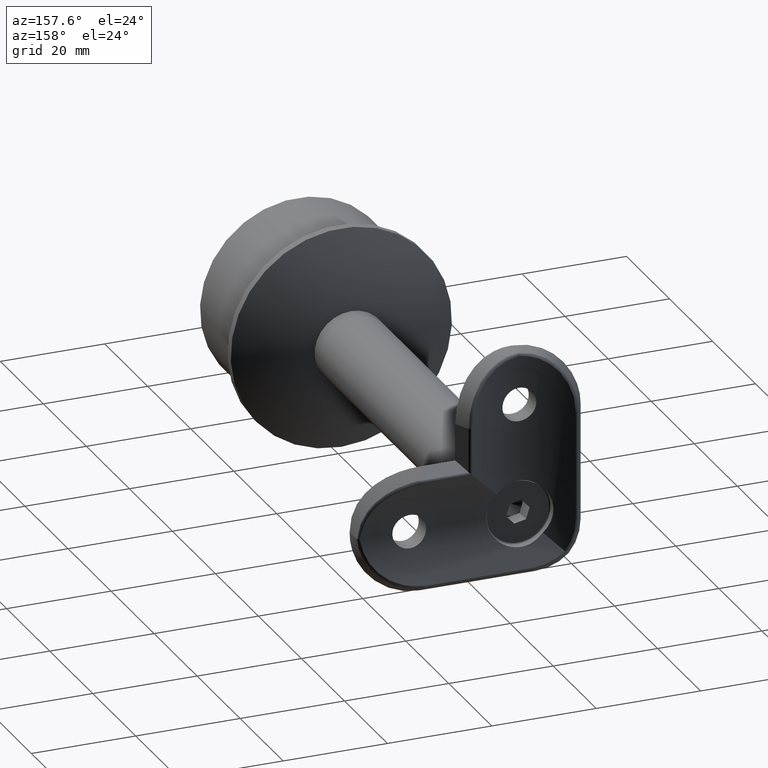
[diagram: clean part render]
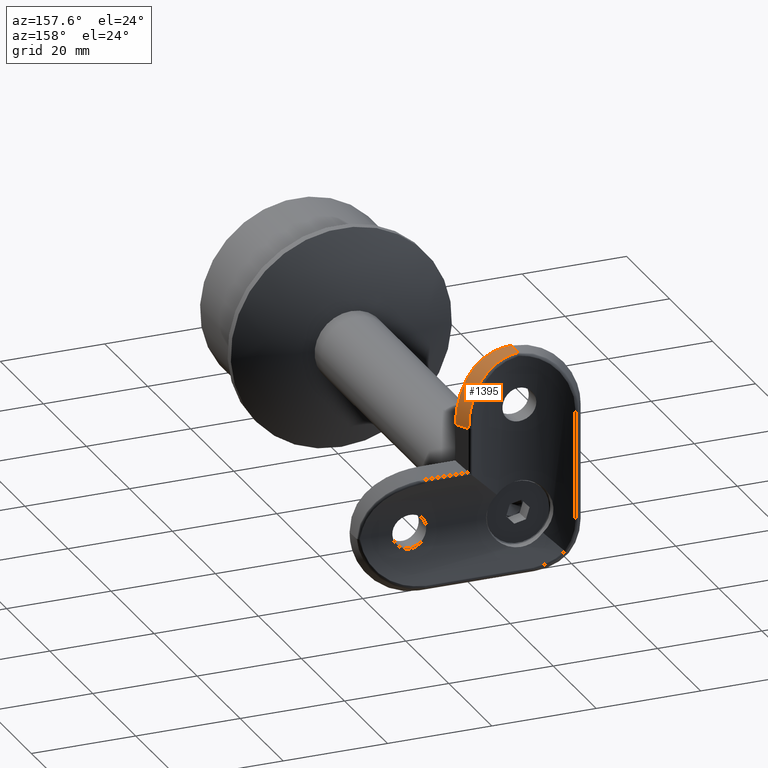
[diagram: same view with one face highlighted and labeled with its STEP entity id]
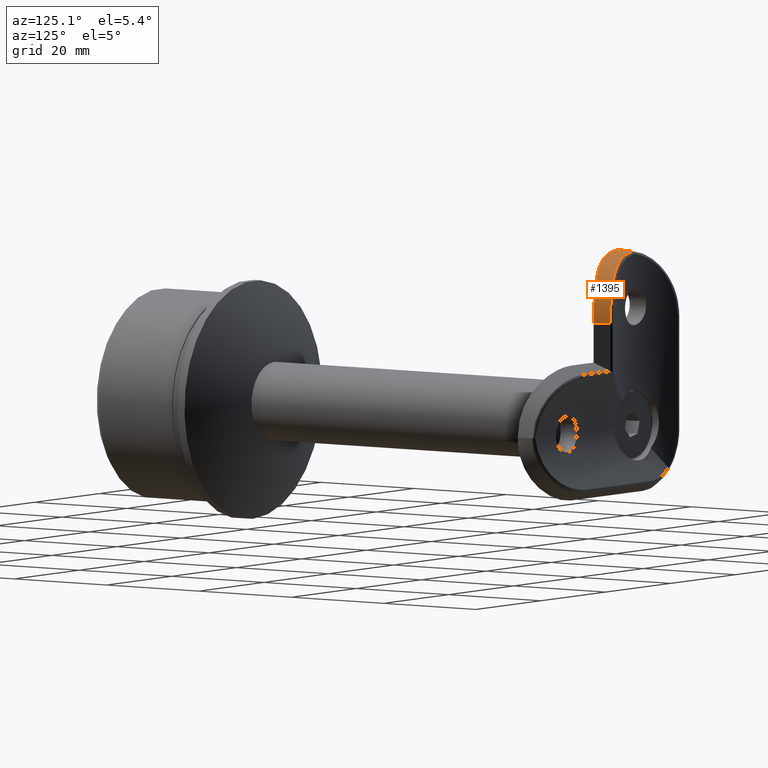
[diagram: same view with one face highlighted and labeled with its STEP entity id]
A machine part, auxiliary view. The second image highlights one B-rep face of the part: STEP entity #1395.
A second angle (auxiliary view) of the same face is appended — the face is thin or edge-on in the first view.
In plain terms, the highlighted cylindrical surface (partial cylindrical patch) has radius 12 mm, axis along (-0.4858, 0.8741, 0).
Its self-contained STEP definition (entity closure, byte-faithful):
#37 = CARTESIAN_POINT ( 'NONE',  ( 1.835189502875481660, 3.128854244805332030, -0.4086525274435564570 ) ) ;
#42 = CARTESIAN_POINT ( 'NONE',  ( 11.29067707203920712, 2.731029278538625427, -7.661343935841768982 ) ) ;
#186 = CARTESIAN_POINT ( 'NONE',  ( 10.22228452745749827, 5.573518088803390391, -9.069594813358342833 ) ) ;
#1184 = EDGE_CURVE ( 'NONE', #9452, #17342, #16684, .T. ) ;
#1291 = CARTESIAN_POINT ( 'NONE',  ( 10.53971119023871417, 5.738077944829629295, -11.99999999999999645 ) ) ;
#1395 = ADVANCED_FACE ( 'NONE', ( #17957 ), #6315, .T. ) ;
#1583 = CARTESIAN_POINT ( 'NONE',  ( 5.507687913038741279, 3.780907073739723678, -2.005107030095856224 ) ) ;
#1652 = CARTESIAN_POINT ( 'NONE',  ( 7.497033304171729640, 1.155074959277571756, -2.303094518174240157 ) ) ;
#1723 = CARTESIAN_POINT ( 'NONE',  ( 0.3717157821171476195, 3.035608346090380216, -0.1311272123468941730 ) ) ;
#1793 = CARTESIAN_POINT ( 'NONE',  ( 5.807837735107585608, 3.861754889686737524, -2.212511702124247748 ) ) ;
#2147 = EDGE_CURVE ( 'NONE', #7361, #16227, #10642, .T. ) ;
#2241 = DIRECTION ( 'NONE',  ( 0.4858299595141706284, -0.8740533453047698575, -0.000000000000000000 ) ) ;
#2561 = CARTESIAN_POINT ( 'NONE',  ( 3.601072036221082911E-15, 0.000000000000000000, 0.000000000000000000 ) ) ;
#3019 = CARTESIAN_POINT ( 'NONE',  ( 11.62887820642735726, 2.908403245503331291, -8.817063870510104096 ) ) ;
#3162 = CARTESIAN_POINT ( 'NONE',  ( 6.166834720918709323, 0.7722096076137952014, -1.445384759861721991 ) ) ;
#3288 = CARTESIAN_POINT ( 'NONE',  ( 10.53971119023871417, 5.738077944829629295, -11.99999999999999645 ) ) ;
#3319 = CARTESIAN_POINT ( 'NONE',  ( 1.990810050499842475E-15, 1.013143238464493168, -7.915426344007230124E-17 ) ) ;
#3361 = CARTESIAN_POINT ( 'NONE',  ( 8.538757616669146344, 4.798744972214031179, -5.057252207604880923 ) ) ;
#4082 = B_SPLINE_CURVE_WITH_KNOTS ( 'NONE', 3,
 ( #15415, #7627, #6384, #12460, #3019, #15761, #42, #8050, #10948, #19123, #4871, #6181, #9658, #4602, #1652, #3162, #17359, #10884, #17432, #7765, #20439, #6316, #14105, #4801 ),
 .UNSPECIFIED., .F., .F.,
 ( 4, 2, 2, 2, 2, 2, 2, 2, 2, 2, 2, 4 ),
 ( 1.058749929371489123E-17, 0.002406580534152879657, 0.003609870801229314499, 0.004813161068305749773, 0.007219741602458615987, 0.008423031869535050828, 0.009626322136611485669, 0.01203290267076435709, 0.01443948320491722677, 0.01564277347199366161, 0.01684606373907009472, 0.01925264427322296787 ),
 .UNSPECIFIED. ) ;
#4602 = CARTESIAN_POINT ( 'NONE',  ( 8.099404966363239922, 1.358453551449893881, -2.794606304319405599 ) ) ;
#4730 = CARTESIAN_POINT ( 'NONE',  ( 9.269901498195485701, 5.112828249825286164, -6.301554369428822966 ) ) ;
#4801 = CARTESIAN_POINT ( 'NONE',  ( 3.601072036221082911E-15, 0.000000000000000000, 0.000000000000000000 ) ) ;
#4868 = CARTESIAN_POINT ( 'NONE',  ( 9.933564340798485048, 5.429111303165174540, -8.000772883041234351 ) ) ;
#4871 = CARTESIAN_POINT ( 'NONE',  ( 9.661430124385192997, 1.966409090779945412, -4.529793847369258941 ) ) ;
#4898 = CARTESIAN_POINT ( 'NONE',  ( 3.601072036221082911E-15, 0.000000000000000000, 0.000000000000000000 ) ) ;
#4941 = CARTESIAN_POINT ( 'NONE',  ( 1.471476261503991800, 3.096880770363722224, -0.3241193906004582459 ) ) ;
#5013 = CARTESIAN_POINT ( 'NONE',  ( 8.732631405510835165, 4.880105572080483789, -5.362076096639772693 ) ) ;
#6181 = CARTESIAN_POINT ( 'NONE',  ( 9.174398946052681580, 1.765532671221294647, -3.914963280962719061 ) ) ;
#6244 = CARTESIAN_POINT ( 'NONE',  ( 8.119630012388043383, 4.630367664769260649, -4.464765193830678491 ) ) ;
#6315 = CYLINDRICAL_SURFACE ( 'NONE', #16780, 12.00000000000000000 ) ;
#6316 = CARTESIAN_POINT ( 'NONE',  ( 1.616414263079187119, 0.04009865889710237385, -0.06268871624341798565 ) ) ;
#6383 = CARTESIAN_POINT ( 'NONE',  ( 6.665760389367132888, 4.109824930646269081, -2.871376122158880495 ) ) ;
#6384 = CARTESIAN_POINT ( 'NONE',  ( 11.92859548616417698, 3.070751784124186923, -10.38652633975097039 ) ) ;
#6522 = CARTESIAN_POINT ( 'NONE',  ( 0.7404109976856250164, 3.050339483887503977, -0.1855537171515420081 ) ) ;
#7361 = VERTEX_POINT ( 'NONE', #2561 ) ;
#7559 = CARTESIAN_POINT ( 'NONE',  ( 7.740312969005719521E-16, 3.029863760737441236, -0.09062469495984236401 ) ) ;
#7627 = CARTESIAN_POINT ( 'NONE',  ( 11.99999999999999467, 3.110882370972181565, -11.18630415740358863 ) ) ;
#7765 = CARTESIAN_POINT ( 'NONE',  ( 3.199605881044097266, 0.2049711980895038144, -0.3485025884761714376 ) ) ;
#7780 = B_SPLINE_CURVE_WITH_KNOTS ( 'NONE', 3,
 ( #3288, #14393, #11085, #11228, #186, #11158, #4868, #9652, #4730, #5013, #3361, #6244, #15975, #15899, #6383, #1793, #1583, #19047, #17285, #8121, #12882, #37, #4941, #6522, #1723, #14246 ),
 .UNSPECIFIED., .F., .F.,
 ( 4, 2, 2, 2, 2, 2, 2, 2, 2, 2, 2, 2, 4 ),
 ( 0.000000000000000000, 0.002211687512370214340, 0.003317531268555321509, 0.004423375024740428679, 0.006635062537110643886, 0.007740906293295752791, 0.008846750049480860828, 0.01105843756185107343, 0.01216428131803618147, 0.01327012507422128777, 0.01548181258659150732, 0.01658765634277661535, 0.01769350009896172513 ),
 .UNSPECIFIED. ) ;
#7926 = CARTESIAN_POINT ( 'NONE',  ( -10.48864014365725694, 18.87004048582995352, -12.00000000000000000 ) ) ;
#8050 = CARTESIAN_POINT ( 'NONE',  ( 10.86687449944536965, 2.516643810385671198, -6.549085265836837699 ) ) ;
#8080 = CARTESIAN_POINT ( 'NONE',  ( 7.740312969005719521E-16, 3.029863760737441236, -0.09062469495984236401 ) ) ;
#8121 = CARTESIAN_POINT ( 'NONE',  ( 3.589126953104929907, 3.357423306449198286, -0.9650933646263073484 ) ) ;
#8315 = VECTOR ( 'NONE', #2241, 1000.000000000000000 ) ;
#9452 = VERTEX_POINT ( 'NONE', #1291 ) ;
#9652 = CARTESIAN_POINT ( 'NONE',  ( 9.569349463060191852, 5.252852787617594110, -6.961006417799286972 ) ) ;
#9658 = CARTESIAN_POINT ( 'NONE',  ( 8.916507318172449459, 1.663714815541116110, -3.623350678254145141 ) ) ;
#10416 = ORIENTED_EDGE ( 'NONE', *, *, #2147, .F. ) ;
#10642 =( BOUNDED_CURVE ( )  B_SPLINE_CURVE ( 3, ( #4898, #3319, #17534, #8080 ),
 .UNSPECIFIED., .F., .F. ) 
 B_SPLINE_CURVE_WITH_KNOTS ( ( 4, 4 ),
 ( 1.570796326794896780, 1.693772606617627963 ),
 .UNSPECIFIED. ) 
 CURVE ( )  GEOMETRIC_REPRESENTATION_ITEM ( )  RATIONAL_B_SPLINE_CURVE ( ( 1.000000000000000000, 0.9987401332329102210, 0.9987401332329102210, 1.000000000000000000 ) ) 
 REPRESENTATION_ITEM ( '' )  );
#10772 = DIRECTION ( 'NONE',  ( -0.8740533453047699686, -0.4858299595141706284, 0.000000000000000000 ) ) ;
#10884 = CARTESIAN_POINT ( 'NONE',  ( 4.354802112542869530, 0.3840058321923419671, -0.6772571105601165042 ) ) ;
#10948 = CARTESIAN_POINT ( 'NONE',  ( 10.51842810678144602, 2.346849745541568222, -5.846952761512683949 ) ) ;
#11085 = CARTESIAN_POINT ( 'NONE',  ( 10.47855176280992850, 5.705503992355610343, -10.51621551605694194 ) ) ;
#11158 = CARTESIAN_POINT ( 'NONE',  ( 10.04062280470158086, 5.482199962630023293, -8.356330321400628591 ) ) ;
#11228 = CARTESIAN_POINT ( 'NONE',  ( 10.29759581758889020, 5.612088555418221603, -9.429120123840055712 ) ) ;
#12127 = EDGE_LOOP ( 'NONE', ( #16050, #14624, #10416, #19355 ) ) ;
#12460 = CARTESIAN_POINT ( 'NONE',  ( 11.71699478268041972, 2.955840429513826084, -9.206904267075977089 ) ) ;
#12481 = DIRECTION ( 'NONE',  ( -0.4858299595141706839, 0.8740533453047699686, 0.000000000000000000 ) ) ;
#12882 = CARTESIAN_POINT ( 'NONE',  ( 2.905809991406903769, 3.247913975560729138, -0.7074156933659818680 ) ) ;
#12911 = CARTESIAN_POINT ( 'NONE',  ( 11.99999999999999822, 3.110882370972181565, -12.00000000000001066 ) ) ;
#14105 = CARTESIAN_POINT ( 'NONE',  ( 0.8132883673673650948, -1.038085934246103200E-15, -1.332665170346764716E-16 ) ) ;
#14246 = CARTESIAN_POINT ( 'NONE',  ( 7.740312969005719521E-16, 3.029863760737441236, -0.09062469495984236401 ) ) ;
#14393 = CARTESIAN_POINT ( 'NONE',  ( 10.53971119023871417, 5.738077944829627519, -11.25222862351723840 ) ) ;
#14624 = ORIENTED_EDGE ( 'NONE', *, *, #16306, .T. ) ;
#15415 = CARTESIAN_POINT ( 'NONE',  ( 11.99999999999999822, 3.110882370972181565, -12.00000000000001066 ) ) ;
#15761 = CARTESIAN_POINT ( 'NONE',  ( 11.41587513011002031, 2.796066735304219897, -8.044292233767079026 ) ) ;
#15899 = CARTESIAN_POINT ( 'NONE',  ( 7.186626295999050562, 4.283856957897546280, -3.362448454889183758 ) ) ;
#15975 = CARTESIAN_POINT ( 'NONE',  ( 7.894751655761194087, 4.543563230655478513, -4.178045464450055313 ) ) ;
#16050 = ORIENTED_EDGE ( 'NONE', *, *, #1184, .F. ) ;
#16227 = VERTEX_POINT ( 'NONE', #7559 ) ;
#16306 = EDGE_CURVE ( 'NONE', #9452, #16227, #7780, .T. ) ;
#16473 = CARTESIAN_POINT ( 'NONE',  ( 11.99999999999999822, 3.110882370972181565, -11.99999999999999645 ) ) ;
#16684 = LINE ( 'NONE', #16473, #8315 ) ;
#16780 = AXIS2_PLACEMENT_3D ( 'NONE', #7926, #12481, #10772 ) ;
#17285 = CARTESIAN_POINT ( 'NONE',  ( 4.567942503128780807, 3.555822712916793193, -1.445088305350714641 ) ) ;
#17342 = VERTEX_POINT ( 'NONE', #12911 ) ;
#17359 = CARTESIAN_POINT ( 'NONE',  ( 5.463922679457850151, 0.6001443119266397508, -1.095279738116707424 ) ) ;
#17432 = CARTESIAN_POINT ( 'NONE',  ( 3.975921368411833523, 0.3189425357995827048, -0.5558904416246297497 ) ) ;
#17534 = CARTESIAN_POINT ( 'NONE',  ( 1.380690074930472703E-15, 2.024371838684321467, -0.03024633800936473230 ) ) ;
#17737 = EDGE_CURVE ( 'NONE', #17342, #7361, #4082, .T. ) ;
#17957 = FACE_OUTER_BOUND ( 'NONE', #12127, .T. ) ;
#19047 = CARTESIAN_POINT ( 'NONE',  ( 4.886493709250090411, 3.627657011764035655, -1.620725087500012318 ) ) ;
#19123 = CARTESIAN_POINT ( 'NONE',  ( 9.890151245574541505, 2.065345764212757729, -4.853003632351834185 ) ) ;
#19355 = ORIENTED_EDGE ( 'NONE', *, *, #17737, .F. ) ;
#20439 = CARTESIAN_POINT ( 'NONE',  ( 2.804642605329990435, 0.1565209849526151831, -0.2633169959678583472 ) ) ;